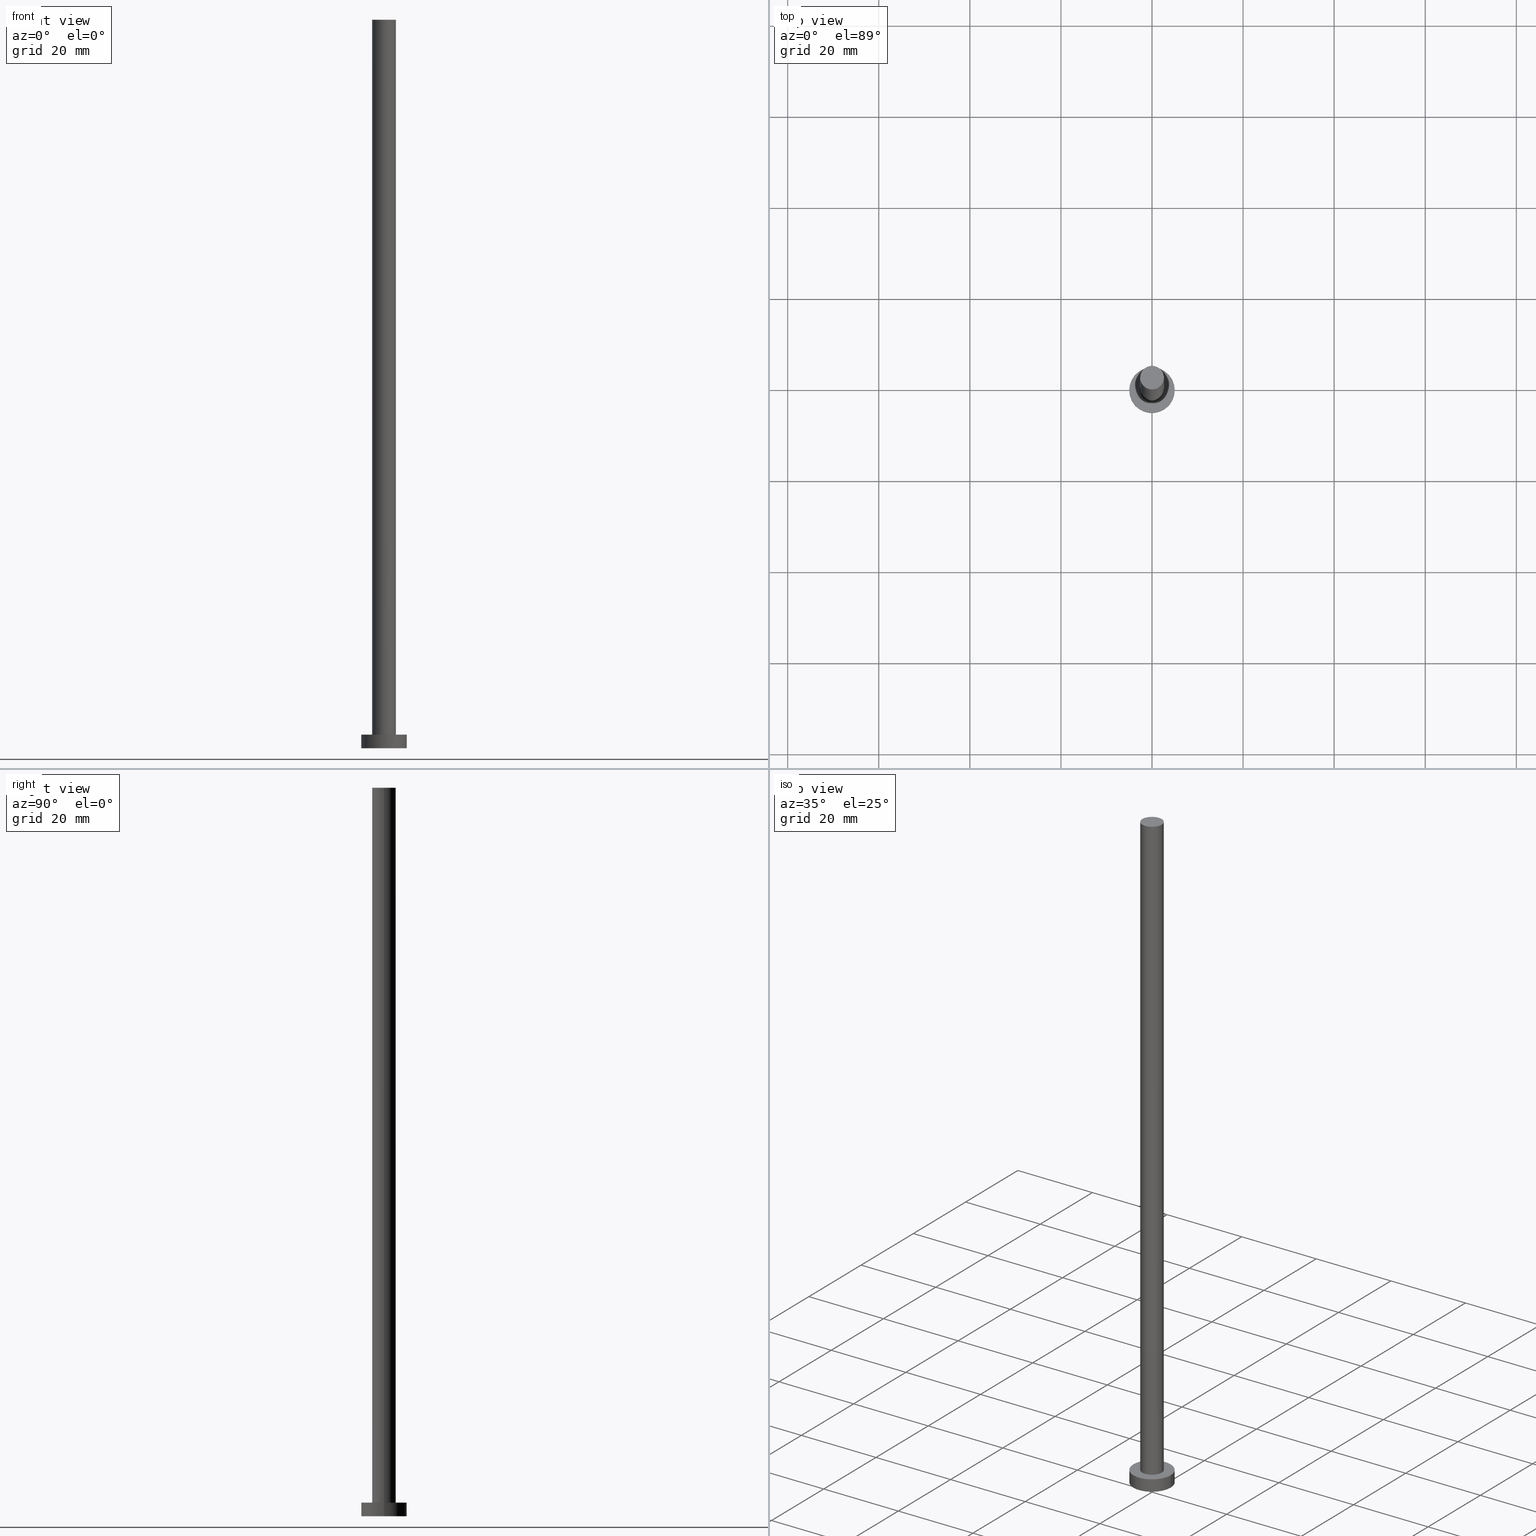
[diagram: canonical four-view strip — front | top / right | iso, engineering-drawing reading convention]
A machine part, canonical four-view strip (front | top / right | iso — engineering-drawing reading convention). The complete STEP part file that produces these views, byte-faithful:
ISO-10303-21;
HEADER;
FILE_DESCRIPTION (( 'STEP AP203' ),
    '1' );
FILE_NAME ('a88a.STEP',
    '2023-02-12T12:27:58',
    ( '' ),
    ( '' ),
    'SwSTEP 2.0',
    'SolidWorks 2019',
    '' );
FILE_SCHEMA (( 'CONFIG_CONTROL_DESIGN' ));
ENDSEC;

DATA;
#1 = CARTESIAN_POINT ( 'NONE',  ( 0.000000000000000000, 0.000000000000000000, 0.000000000000000000 ) ) ;
#2 = PERSON_AND_ORGANIZATION ( #214, #247 ) ;
#3 = LOCAL_TIME ( 13, 27, 58.00000000000000000, #38 ) ;
#4 = APPROVAL_STATUS ( 'not_yet_approved' ) ;
#5 = EDGE_CURVE ( 'NONE', #149, #7, #185, .T. ) ;
#6 = AXIS2_PLACEMENT_3D ( 'NONE', #194, #155, #132 ) ;
#7 = VERTEX_POINT ( 'NONE', #178 ) ;
#8 = PRODUCT ( 'a88a', 'a88a', '', ( #203 ) ) ;
#9 = EDGE_CURVE ( 'NONE', #7, #149, #21, .T. ) ;
#10 = AXIS2_PLACEMENT_3D ( 'NONE', #57, #176, #133 ) ;
#11 = EDGE_LOOP ( 'NONE', ( #244, #87 ) ) ;
#12 = CARTESIAN_POINT ( 'NONE',  ( 0.000000000000000000, 0.000000000000000000, 3.000000000000000000 ) ) ;
#13 = ORIENTED_EDGE ( 'NONE', *, *, #222, .T. ) ;
#14 = ADVANCED_FACE ( 'NONE', ( #51 ), #213, .T. ) ;
#15 = CARTESIAN_POINT ( 'NONE',  ( -5.000000000000000000, 0.000000000000000000, 0.000000000000000000 ) ) ;
#16 = CARTESIAN_POINT ( 'NONE',  ( 0.000000000000000000, 0.000000000000000000, 160.0000000000000000 ) ) ;
#17 = DIRECTION ( 'NONE',  ( 0.000000000000000000, 0.000000000000000000, 1.000000000000000000 ) ) ;
#18 = DIRECTION ( 'NONE',  ( 0.000000000000000000, 0.000000000000000000, 1.000000000000000000 ) ) ;
#19 = ADVANCED_FACE ( 'NONE', ( #35 ), #118, .T. ) ;
#20 = CC_DESIGN_PERSON_AND_ORGANIZATION_ASSIGNMENT ( #141, #179, ( #171 ) ) ;
#21 = CIRCLE ( 'NONE', #248, 2.600000000000000089 ) ;
#22 = CALENDAR_DATE ( 2023, 12, 2 ) ;
#23 = APPROVAL ( #4, 'NEUR�EN�' ) ;
#24 = APPROVAL_DATE_TIME ( #204, #23 ) ;
#25 = DIRECTION ( 'NONE',  ( 0.000000000000000000, 0.000000000000000000, 1.000000000000000000 ) ) ;
#26 = EDGE_CURVE ( 'NONE', #229, #192, #218, .T. ) ;
#27 = PERSON_AND_ORGANIZATION ( #214, #247 ) ;
#28 = EDGE_LOOP ( 'NONE', ( #187, #50, #29, #186 ) ) ;
#29 = ORIENTED_EDGE ( 'NONE', *, *, #177, .T. ) ;
#30 = CIRCLE ( 'NONE', #164, 5.000000000000000000 ) ;
#31 = ORIENTED_EDGE ( 'NONE', *, *, #227, .T. ) ;
#32 = CC_DESIGN_APPROVAL ( #85, ( #171 ) ) ;
#33 = EDGE_CURVE ( 'NONE', #146, #192, #254, .T. ) ;
#34 = PLANE ( 'NONE',  #236 ) ;
#35 = FACE_OUTER_BOUND ( 'NONE', #127, .T. ) ;
#36 = LINE ( 'NONE', #134, #83 ) ;
#37 = DIRECTION ( 'NONE',  ( -0.000000000000000000, -0.000000000000000000, -1.000000000000000000 ) ) ;
#38 = COORDINATED_UNIVERSAL_TIME_OFFSET ( 1, 0, .AHEAD. ) ;
#39 = DIRECTION ( 'NONE',  ( 0.000000000000000000, 0.000000000000000000, 1.000000000000000000 ) ) ;
#40 = APPROVAL_PERSON_ORGANIZATION ( #77, #23, #140 ) ;
#41 = MANIFOLD_SOLID_BREP ( 'P�idat vysunut�m3', #126 ) ;
#42 = CIRCLE ( 'NONE', #188, 5.000000000000000000 ) ;
#43 = ORIENTED_EDGE ( 'NONE', *, *, #130, .F. ) ;
#44 = LINE ( 'NONE', #128, #196 ) ;
#45 = ORIENTED_EDGE ( 'NONE', *, *, #33, .T. ) ;
#46 = DIRECTION ( 'NONE',  ( -0.000000000000000000, -0.000000000000000000, -1.000000000000000000 ) ) ;
#47 = EDGE_LOOP ( 'NONE', ( #107, #209, #45, #129 ) ) ;
#48 = CARTESIAN_POINT ( 'NONE',  ( 5.000000000000000000, 6.123233995736766282E-16, 0.000000000000000000 ) ) ;
#49 = CIRCLE ( 'NONE', #200, 2.600000000000000089 ) ;
#50 = ORIENTED_EDGE ( 'NONE', *, *, #9, .F. ) ;
#51 = FACE_OUTER_BOUND ( 'NONE', #170, .T. ) ;
#52 = DIRECTION ( 'NONE',  ( 1.000000000000000000, 0.000000000000000000, 0.000000000000000000 ) ) ;
#53 = FACE_OUTER_BOUND ( 'NONE', #28, .T. ) ;
#54 = CARTESIAN_POINT ( 'NONE',  ( 0.000000000000000000, 0.000000000000000000, 3.000000000000000000 ) ) ;
#55 = SECURITY_CLASSIFICATION ( '', '', #163 ) ;
#56 = DIRECTION ( 'NONE',  ( 1.000000000000000000, 0.000000000000000000, 0.000000000000000000 ) ) ;
#57 = CARTESIAN_POINT ( 'NONE',  ( 0.000000000000000000, 0.000000000000000000, 160.0000000000000000 ) ) ;
#58 = PERSON_AND_ORGANIZATION_ROLE ( 'design_owner' ) ;
#59 =( NAMED_UNIT ( * ) PLANE_ANGLE_UNIT ( ) SI_UNIT ( $, .RADIAN. ) );
#60 = EDGE_CURVE ( 'NONE', #62, #229, #30, .T. ) ;
#61 = APPROVAL_DATE_TIME ( #135, #85 ) ;
#62 = VERTEX_POINT ( 'NONE', #202 ) ;
#63 = PERSON_AND_ORGANIZATION ( #214, #247 ) ;
#64 = VERTEX_POINT ( 'NONE', #72 ) ;
#65 = LOCAL_TIME ( 13, 27, 58.00000000000000000, #183 ) ;
#66 = ORIENTED_EDGE ( 'NONE', *, *, #100, .T. ) ;
#67 = CARTESIAN_POINT ( 'NONE',  ( -5.000000000000000000, 0.000000000000000000, 3.000000000000000000 ) ) ;
#68 = AXIS2_PLACEMENT_3D ( 'NONE', #12, #166, #243 ) ;
#69 = DIRECTION ( 'NONE',  ( -1.000000000000000000, 0.000000000000000000, 0.000000000000000000 ) ) ;
#70 = AXIS2_PLACEMENT_3D ( 'NONE', #115, #18, #94 ) ;
#71 = DIRECTION ( 'NONE',  ( -1.000000000000000000, 0.000000000000000000, 0.000000000000000000 ) ) ;
#72 = CARTESIAN_POINT ( 'NONE',  ( -2.600000000000000089, 0.000000000000000000, 3.000000000000000000 ) ) ;
#73 = CYLINDRICAL_SURFACE ( 'NONE', #206, 5.000000000000000000 ) ;
#74 = LINE ( 'NONE', #233, #231 ) ;
#75 = DIRECTION ( 'NONE',  ( -1.000000000000000000, 0.000000000000000000, 0.000000000000000000 ) ) ;
#76 = CC_DESIGN_SECURITY_CLASSIFICATION ( #55, ( #171 ) ) ;
#77 = PERSON_AND_ORGANIZATION ( #214, #247 ) ;
#78 = CALENDAR_DATE ( 2023, 12, 2 ) ;
#79 = CARTESIAN_POINT ( 'NONE',  ( 0.000000000000000000, 0.000000000000000000, 0.000000000000000000 ) ) ;
#80 = LOCAL_TIME ( 13, 27, 58.00000000000000000, #82 ) ;
#81 = PERSON_AND_ORGANIZATION ( #214, #247 ) ;
#82 = COORDINATED_UNIVERSAL_TIME_OFFSET ( 1, 0, .AHEAD. ) ;
#83 = VECTOR ( 'NONE', #156, 1000.000000000000000 ) ;
#84 = EDGE_CURVE ( 'NONE', #64, #242, #49, .T. ) ;
#85 = APPROVAL ( #139, 'NEUR�EN�' ) ;
#86 = ORIENTED_EDGE ( 'NONE', *, *, #84, .F. ) ;
#87 = ORIENTED_EDGE ( 'NONE', *, *, #5, .T. ) ;
#88 = DESIGN_CONTEXT ( 'detailed design', #117, 'design' ) ;
#89 = EDGE_LOOP ( 'NONE', ( #145, #152 ) ) ;
#90 = DIRECTION ( 'NONE',  ( 0.000000000000000000, 0.000000000000000000, 1.000000000000000000 ) ) ;
#91 = PRODUCT_DEFINITION_SHAPE ( 'NONE', 'NONE',  #110 ) ;
#92 = DIRECTION ( 'NONE',  ( 1.000000000000000000, 0.000000000000000000, -0.000000000000000000 ) ) ;
#93 = DIRECTION ( 'NONE',  ( 1.000000000000000000, 0.000000000000000000, 0.000000000000000000 ) ) ;
#94 = DIRECTION ( 'NONE',  ( 1.000000000000000000, 0.000000000000000000, 0.000000000000000000 ) ) ;
#95 = ADVANCED_BREP_SHAPE_REPRESENTATION ( 'a88a', ( #41, #119 ), #232 ) ;
#96 = DIRECTION ( 'NONE',  ( 1.000000000000000000, 0.000000000000000000, 0.000000000000000000 ) ) ;
#97 = APPROVAL_PERSON_ORGANIZATION ( #101, #85, #182 ) ;
#98 = UNCERTAINTY_MEASURE_WITH_UNIT (LENGTH_MEASURE( 1.000000000000000082E-05 ), #223, 'distance_accuracy_value', 'NONE');
#99 = DIRECTION ( 'NONE',  ( 0.000000000000000000, 0.000000000000000000, 1.000000000000000000 ) ) ;
#100 = EDGE_CURVE ( 'NONE', #149, #242, #36, .T. ) ;
#101 = PERSON_AND_ORGANIZATION ( #214, #247 ) ;
#102 = DATE_AND_TIME ( #78, #3 ) ;
#103 = PERSON_AND_ORGANIZATION_ROLE ( 'classification_officer' ) ;
#104 = CIRCLE ( 'NONE', #68, 5.000000000000000000 ) ;
#105 = CC_DESIGN_PERSON_AND_ORGANIZATION_ASSIGNMENT ( #81, #217, ( #110 ) ) ;
#106 = ORIENTED_EDGE ( 'NONE', *, *, #227, .F. ) ;
#107 = ORIENTED_EDGE ( 'NONE', *, *, #60, .F. ) ;
#108 = SHAPE_DEFINITION_REPRESENTATION ( #91, #95 ) ;
#109 = ORIENTED_EDGE ( 'NONE', *, *, #177, .F. ) ;
#110 = PRODUCT_DEFINITION ( 'NEZN�M�', '', #171, #88 ) ;
#111 = VECTOR ( 'NONE', #235, 1000.000000000000000 ) ;
#112 = CYLINDRICAL_SURFACE ( 'NONE', #161, 2.600000000000000089 ) ;
#113 = CARTESIAN_POINT ( 'NONE',  ( 0.000000000000000000, 0.000000000000000000, 160.0000000000000000 ) ) ;
#114 = PRODUCT_RELATED_PRODUCT_CATEGORY ( 'detail', '', ( #8 ) ) ;
#115 = CARTESIAN_POINT ( 'NONE',  ( 0.000000000000000000, 0.000000000000000000, 3.000000000000000000 ) ) ;
#116 = CARTESIAN_POINT ( 'NONE',  ( 0.000000000000000000, 0.000000000000000000, 3.000000000000000000 ) ) ;
#117 = APPLICATION_CONTEXT ( 'configuration controlled 3d designs of mechanical parts and assemblies' ) ;
#118 = CYLINDRICAL_SURFACE ( 'NONE', #138, 5.000000000000000000 ) ;
#119 = AXIS2_PLACEMENT_3D ( 'NONE', #79, #255, #56 ) ;
#120 = FACE_OUTER_BOUND ( 'NONE', #11, .T. ) ;
#121 = DIRECTION ( 'NONE',  ( 1.000000000000000000, 0.000000000000000000, 0.000000000000000000 ) ) ;
#122 = PERSON_AND_ORGANIZATION_ROLE ( 'design_supplier' ) ;
#123 = CARTESIAN_POINT ( 'NONE',  ( 0.000000000000000000, 0.000000000000000000, 3.000000000000000000 ) ) ;
#124 = AXIS2_PLACEMENT_3D ( 'NONE', #1, #25, #241 ) ;
#125 = APPLICATION_PROTOCOL_DEFINITION ( 'international standard', 'config_control_design', 1994, #117 ) ;
#126 = CLOSED_SHELL ( 'NONE', ( #14, #184, #19, #224, #143, #189, #219 ) ) ;
#127 = EDGE_LOOP ( 'NONE', ( #43, #169, #211, #13 ) ) ;
#128 = CARTESIAN_POINT ( 'NONE',  ( -2.600000000000000089, 0.000000000000000000, 160.0000000000000000 ) ) ;
#129 = ORIENTED_EDGE ( 'NONE', *, *, #26, .F. ) ;
#130 = EDGE_CURVE ( 'NONE', #62, #146, #74, .T. ) ;
#131 = DIRECTION ( 'NONE',  ( -0.000000000000000000, -0.000000000000000000, -1.000000000000000000 ) ) ;
#132 = DIRECTION ( 'NONE',  ( 1.000000000000000000, 0.000000000000000000, -0.000000000000000000 ) ) ;
#133 = DIRECTION ( 'NONE',  ( -1.000000000000000000, 0.000000000000000000, 0.000000000000000000 ) ) ;
#134 = CARTESIAN_POINT ( 'NONE',  ( 2.600000000000000089, 3.184081677783118191E-16, 160.0000000000000000 ) ) ;
#135 = DATE_AND_TIME ( #220, #65 ) ;
#136 = DIRECTION ( 'NONE',  ( -0.000000000000000000, -0.000000000000000000, -1.000000000000000000 ) ) ;
#137 = CALENDAR_DATE ( 2023, 12, 2 ) ;
#138 = AXIS2_PLACEMENT_3D ( 'NONE', #116, #136, #69 ) ;
#139 = APPROVAL_STATUS ( 'not_yet_approved' ) ;
#140 = APPROVAL_ROLE ( '' ) ;
#141 = PERSON_AND_ORGANIZATION ( #214, #247 ) ;
#142 = AXIS2_PLACEMENT_3D ( 'NONE', #250, #39, #52 ) ;
#143 = ADVANCED_FACE ( 'NONE', ( #198 ), #160, .F. ) ;
#144 = APPROVAL_PERSON_ORGANIZATION ( #63, #158, #245 ) ;
#145 = ORIENTED_EDGE ( 'NONE', *, *, #222, .F. ) ;
#146 = VERTEX_POINT ( 'NONE', #48 ) ;
#147 = DATE_AND_TIME ( #22, #199 ) ;
#148 = CC_DESIGN_APPROVAL ( #23, ( #110 ) ) ;
#149 = VERTEX_POINT ( 'NONE', #208 ) ;
#150 = APPLICATION_CONTEXT ( 'configuration controlled 3d designs of mechanical parts and assemblies' ) ;
#151 = EDGE_CURVE ( 'NONE', #229, #62, #104, .T. ) ;
#152 = ORIENTED_EDGE ( 'NONE', *, *, #33, .F. ) ;
#153 = CARTESIAN_POINT ( 'NONE',  ( 0.000000000000000000, 0.000000000000000000, 160.0000000000000000 ) ) ;
#154 = CC_DESIGN_PERSON_AND_ORGANIZATION_ASSIGNMENT ( #221, #58, ( #8 ) ) ;
#155 = DIRECTION ( 'NONE',  ( 0.000000000000000000, 0.000000000000000000, 1.000000000000000000 ) ) ;
#156 = DIRECTION ( 'NONE',  ( -0.000000000000000000, -0.000000000000000000, -1.000000000000000000 ) ) ;
#157 = FACE_OUTER_BOUND ( 'NONE', #246, .T. ) ;
#158 = APPROVAL ( #228, 'NEUR�EN�' ) ;
#159 = CARTESIAN_POINT ( 'NONE',  ( 0.000000000000000000, 0.000000000000000000, 3.000000000000000000 ) ) ;
#160 = PLANE ( 'NONE',  #124 ) ;
#161 = AXIS2_PLACEMENT_3D ( 'NONE', #16, #37, #75 ) ;
#162 = CC_DESIGN_DATE_AND_TIME_ASSIGNMENT ( #147, #225, ( #55 ) ) ;
#163 = SECURITY_CLASSIFICATION_LEVEL ( 'unclassified' ) ;
#164 = AXIS2_PLACEMENT_3D ( 'NONE', #123, #195, #253 ) ;
#165 = LOCAL_TIME ( 13, 27, 58.00000000000000000, #207 ) ;
#166 = DIRECTION ( 'NONE',  ( 0.000000000000000000, 0.000000000000000000, 1.000000000000000000 ) ) ;
#167 = ORIENTED_EDGE ( 'NONE', *, *, #5, .F. ) ;
#168 = CALENDAR_DATE ( 2023, 12, 2 ) ;
#169 = ORIENTED_EDGE ( 'NONE', *, *, #151, .F. ) ;
#170 = EDGE_LOOP ( 'NONE', ( #167, #66, #31, #109 ) ) ;
#171 = PRODUCT_DEFINITION_FORMATION_WITH_SPECIFIED_SOURCE ( 'LIBOVOLN�', '', #8, .NOT_KNOWN. ) ;
#172 = EDGE_LOOP ( 'NONE', ( #86, #106 ) ) ;
#173 = DIRECTION ( 'NONE',  ( 1.000000000000000000, 0.000000000000000000, 0.000000000000000000 ) ) ;
#174 = FACE_BOUND ( 'NONE', #172, .T. ) ;
#175 = CARTESIAN_POINT ( 'NONE',  ( -5.000000000000000000, 0.000000000000000000, 3.000000000000000000 ) ) ;
#176 = DIRECTION ( 'NONE',  ( -0.000000000000000000, -0.000000000000000000, -1.000000000000000000 ) ) ;
#177 = EDGE_CURVE ( 'NONE', #7, #64, #44, .T. ) ;
#178 = CARTESIAN_POINT ( 'NONE',  ( -2.600000000000000089, 0.000000000000000000, 160.0000000000000000 ) ) ;
#179 = PERSON_AND_ORGANIZATION_ROLE ( 'creator' ) ;
#180 =( NAMED_UNIT ( * ) SI_UNIT ( $, .STERADIAN. ) SOLID_ANGLE_UNIT ( ) );
#181 = CC_DESIGN_DATE_AND_TIME_ASSIGNMENT ( #102, #239, ( #110 ) ) ;
#182 = APPROVAL_ROLE ( '' ) ;
#183 = COORDINATED_UNIVERSAL_TIME_OFFSET ( 1, 0, .AHEAD. ) ;
#184 = ADVANCED_FACE ( 'NONE', ( #191 ), #73, .T. ) ;
#185 = CIRCLE ( 'NONE', #193, 2.600000000000000089 ) ;
#186 = ORIENTED_EDGE ( 'NONE', *, *, #84, .T. ) ;
#187 = ORIENTED_EDGE ( 'NONE', *, *, #100, .F. ) ;
#188 = AXIS2_PLACEMENT_3D ( 'NONE', #237, #90, #173 ) ;
#189 = ADVANCED_FACE ( 'NONE', ( #53 ), #112, .T. ) ;
#190 = CIRCLE ( 'NONE', #70, 2.600000000000000089 ) ;
#191 = FACE_OUTER_BOUND ( 'NONE', #47, .T. ) ;
#192 = VERTEX_POINT ( 'NONE', #15 ) ;
#193 = AXIS2_PLACEMENT_3D ( 'NONE', #113, #99, #121 ) ;
#194 = CARTESIAN_POINT ( 'NONE',  ( 0.000000000000000000, 0.000000000000000000, 3.000000000000000000 ) ) ;
#195 = DIRECTION ( 'NONE',  ( 0.000000000000000000, 0.000000000000000000, 1.000000000000000000 ) ) ;
#196 = VECTOR ( 'NONE', #46, 1000.000000000000000 ) ;
#197 = DIRECTION ( 'NONE',  ( 0.000000000000000000, 0.000000000000000000, 1.000000000000000000 ) ) ;
#198 = FACE_OUTER_BOUND ( 'NONE', #89, .T. ) ;
#199 = LOCAL_TIME ( 13, 27, 58.00000000000000000, #201 ) ;
#200 = AXIS2_PLACEMENT_3D ( 'NONE', #54, #17, #93 ) ;
#201 = COORDINATED_UNIVERSAL_TIME_OFFSET ( 1, 0, .AHEAD. ) ;
#202 = CARTESIAN_POINT ( 'NONE',  ( 5.000000000000000000, 6.123233995736766282E-16, 3.000000000000000000 ) ) ;
#203 = MECHANICAL_CONTEXT ( 'NONE', #150, 'mechanical' ) ;
#204 = DATE_AND_TIME ( #137, #80 ) ;
#205 = CC_DESIGN_PERSON_AND_ORGANIZATION_ASSIGNMENT ( #27, #103, ( #55 ) ) ;
#206 = AXIS2_PLACEMENT_3D ( 'NONE', #159, #131, #71 ) ;
#207 = COORDINATED_UNIVERSAL_TIME_OFFSET ( 1, 0, .AHEAD. ) ;
#208 = CARTESIAN_POINT ( 'NONE',  ( 2.600000000000000089, 3.184081677783118191E-16, 160.0000000000000000 ) ) ;
#209 = ORIENTED_EDGE ( 'NONE', *, *, #130, .T. ) ;
#210 = ORIENTED_EDGE ( 'NONE', *, *, #151, .T. ) ;
#211 = ORIENTED_EDGE ( 'NONE', *, *, #26, .T. ) ;
#212 = CC_DESIGN_APPROVAL ( #158, ( #55 ) ) ;
#213 = CYLINDRICAL_SURFACE ( 'NONE', #10, 2.600000000000000089 ) ;
#214 = PERSON ( 'NEUR�EN�', 'NEUR�EN�', 'NEUR�EN�', ('NEUR�EN�'), ('NEUR�EN�'), ('NEUR�EN�') ) ;
#215 = DIRECTION ( 'NONE',  ( 0.000000000000000000, 0.000000000000000000, 1.000000000000000000 ) ) ;
#216 = DIRECTION ( 'NONE',  ( -0.000000000000000000, -0.000000000000000000, -1.000000000000000000 ) ) ;
#217 = PERSON_AND_ORGANIZATION_ROLE ( 'creator' ) ;
#218 = LINE ( 'NONE', #67, #111 ) ;
#219 = ADVANCED_FACE ( 'NONE', ( #120 ), #34, .T. ) ;
#220 = CALENDAR_DATE ( 2023, 12, 2 ) ;
#221 = PERSON_AND_ORGANIZATION ( #214, #247 ) ;
#222 = EDGE_CURVE ( 'NONE', #192, #146, #42, .T. ) ;
#223 =( LENGTH_UNIT ( ) NAMED_UNIT ( * ) SI_UNIT ( .MILLI., .METRE. ) );
#224 = ADVANCED_FACE ( 'NONE', ( #174, #157 ), #249, .T. ) ;
#225 = DATE_TIME_ROLE ( 'classification_date' ) ;
#226 = APPROVAL_DATE_TIME ( #240, #158 ) ;
#227 = EDGE_CURVE ( 'NONE', #242, #64, #190, .T. ) ;
#228 = APPROVAL_STATUS ( 'not_yet_approved' ) ;
#229 = VERTEX_POINT ( 'NONE', #175 ) ;
#230 = ORIENTED_EDGE ( 'NONE', *, *, #60, .T. ) ;
#231 = VECTOR ( 'NONE', #216, 1000.000000000000000 ) ;
#232 =( GEOMETRIC_REPRESENTATION_CONTEXT ( 3 ) GLOBAL_UNCERTAINTY_ASSIGNED_CONTEXT ( ( #98 ) ) GLOBAL_UNIT_ASSIGNED_CONTEXT ( ( #223, #59, #180 ) ) REPRESENTATION_CONTEXT ( 'NONE', 'WORKASPACE' ) );
#233 = CARTESIAN_POINT ( 'NONE',  ( 5.000000000000000000, 6.123233995736766282E-16, 3.000000000000000000 ) ) ;
#234 = CARTESIAN_POINT ( 'NONE',  ( 0.000000000000000000, 0.000000000000000000, 160.0000000000000000 ) ) ;
#235 = DIRECTION ( 'NONE',  ( -0.000000000000000000, -0.000000000000000000, -1.000000000000000000 ) ) ;
#236 = AXIS2_PLACEMENT_3D ( 'NONE', #234, #197, #92 ) ;
#237 = CARTESIAN_POINT ( 'NONE',  ( 0.000000000000000000, 0.000000000000000000, 0.000000000000000000 ) ) ;
#238 = APPLICATION_PROTOCOL_DEFINITION ( 'international standard', 'config_control_design', 1994, #150 ) ;
#239 = DATE_TIME_ROLE ( 'creation_date' ) ;
#240 = DATE_AND_TIME ( #168, #165 ) ;
#241 = DIRECTION ( 'NONE',  ( 1.000000000000000000, 0.000000000000000000, -0.000000000000000000 ) ) ;
#242 = VERTEX_POINT ( 'NONE', #252 ) ;
#243 = DIRECTION ( 'NONE',  ( 1.000000000000000000, 0.000000000000000000, 0.000000000000000000 ) ) ;
#244 = ORIENTED_EDGE ( 'NONE', *, *, #9, .T. ) ;
#245 = APPROVAL_ROLE ( '' ) ;
#246 = EDGE_LOOP ( 'NONE', ( #210, #230 ) ) ;
#247 = ORGANIZATION ( 'NEUR�EN�', 'NEUR�EN�', '' ) ;
#248 = AXIS2_PLACEMENT_3D ( 'NONE', #153, #215, #96 ) ;
#249 = PLANE ( 'NONE',  #6 ) ;
#250 = CARTESIAN_POINT ( 'NONE',  ( 0.000000000000000000, 0.000000000000000000, 0.000000000000000000 ) ) ;
#251 = CC_DESIGN_PERSON_AND_ORGANIZATION_ASSIGNMENT ( #2, #122, ( #171 ) ) ;
#252 = CARTESIAN_POINT ( 'NONE',  ( 2.600000000000000089, 3.184081677783118191E-16, 3.000000000000000000 ) ) ;
#253 = DIRECTION ( 'NONE',  ( 1.000000000000000000, 0.000000000000000000, 0.000000000000000000 ) ) ;
#254 = CIRCLE ( 'NONE', #142, 5.000000000000000000 ) ;
#255 = DIRECTION ( 'NONE',  ( 0.000000000000000000, 0.000000000000000000, 1.000000000000000000 ) ) ;
ENDSEC;
END-ISO-10303-21;
